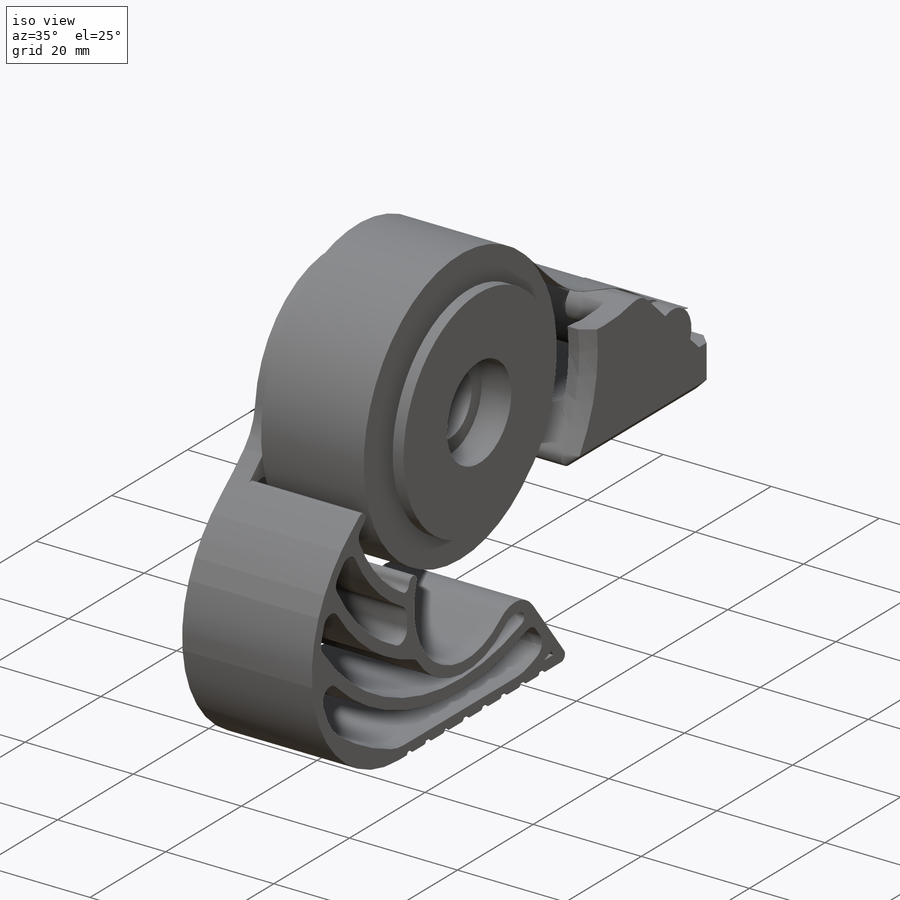
[diagram: iso view]
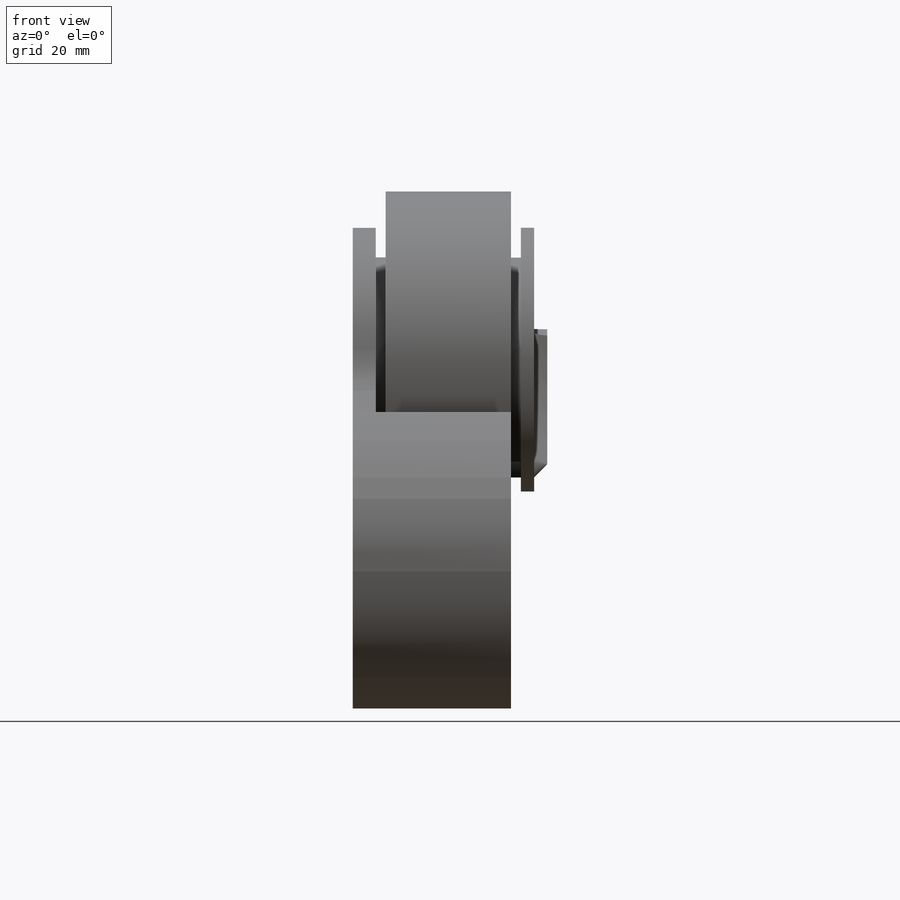
[diagram: front view]
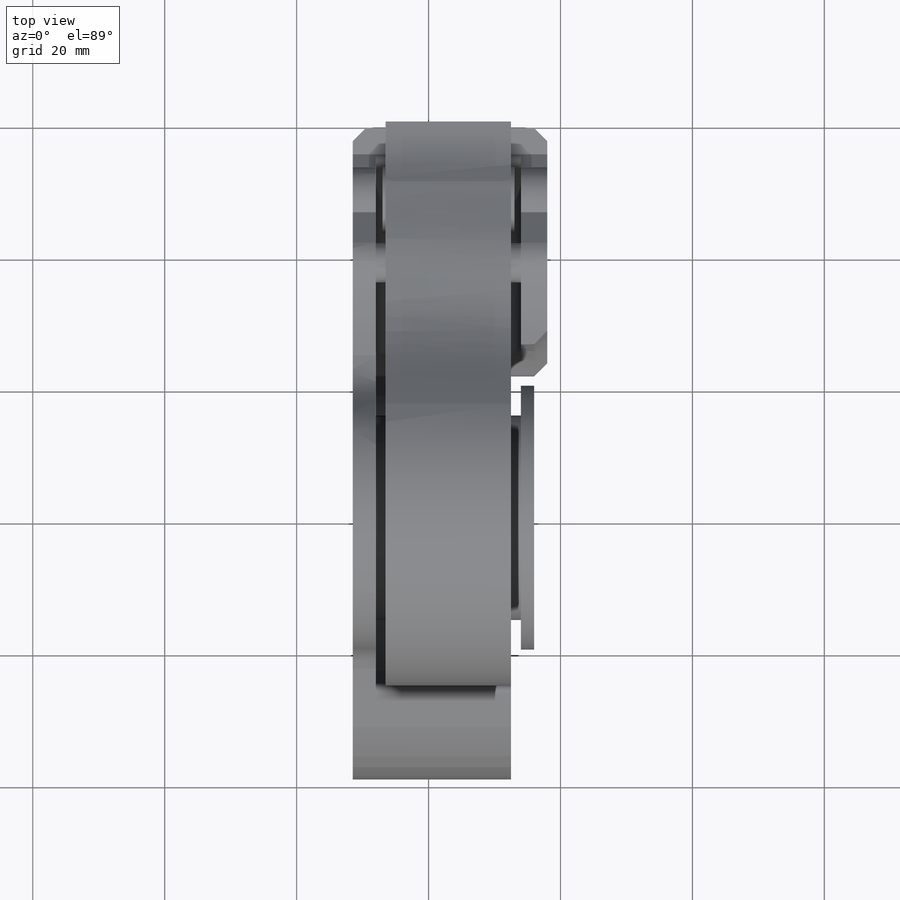
[diagram: top view]
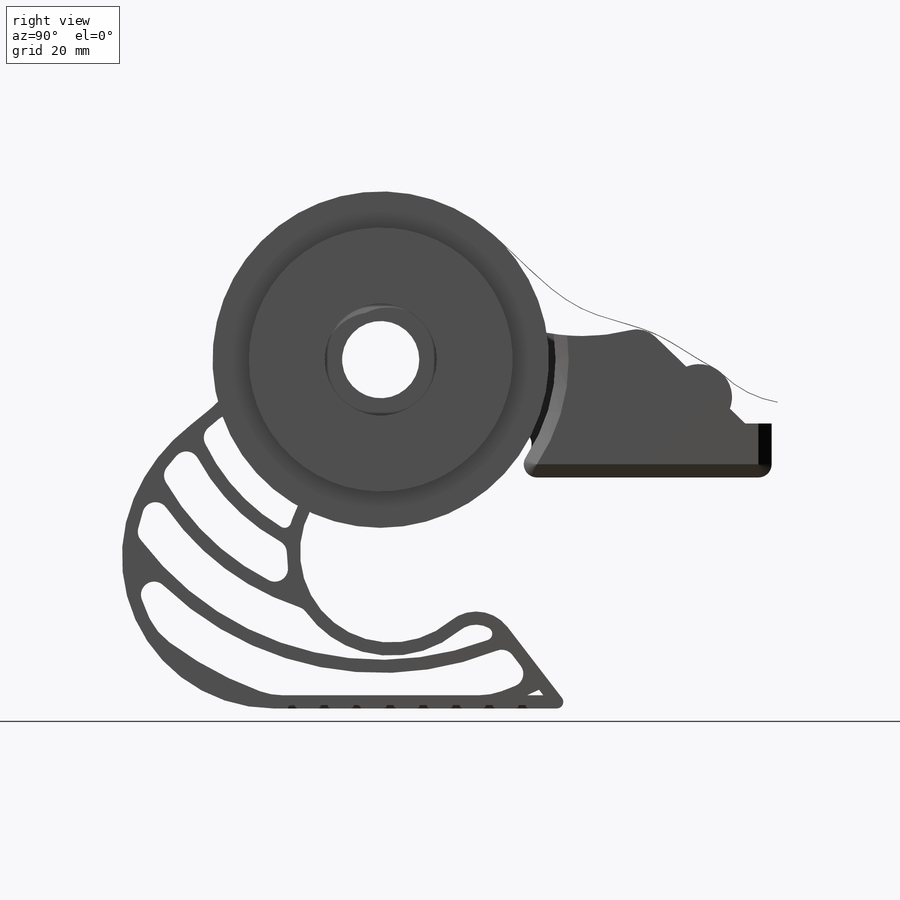
[diagram: right view]
SOLIDWORKS PART (.sldprt)
format: sldprt  version: not decoded by parser v0  size: 1,373,184 bytes
history: native  units: mm
features: sketch x34, extrude x21, fillet x12, cut_extrude x7, plane x6, sweep x3, material x1, chamfer x1, helix x1 (+8 scaffold rows collapsed)
feature tree (94):
  scaffold x8  (default folders/planes/origin — collapsed)
  material  "材質 <未指定>"
  plane  "前基準面"
  plane  "上基準面"
  plane  "右基準面"
  sketch  "草圖1"  dims[D1=24.0mm D3=1.5mm D2=3.0mm]
  extrude  "填料-伸長1"  Depth=19mm
  sketch  "草圖2"  dims[D1=31.0mm]
  extrude  "填料-伸長2"  Depth=1.5mm
  sketch  "草圖3"  dims[D1=0.0mm]
  cut_extrude  "除料-伸長1"  Depth=0.5mm
  sketch  "草圖4"  dims[D1=0.5mm]
  extrude  "填料-伸長3"  Depth=1.5mm
  sketch  "草圖5"  dims[D1=3.0mm]
  extrude  "填料-伸長4"  Depth=10mm
  sketch  "草圖6"  dims[c1.D1=1.0mm c1.D6=1.5mm c1.D4=4.0mm c1.D5=10.0mm c2.D6=6.0mm c2.D3=4.0mm c2.D11=4.0mm c2.D12=1.0mm c2.D13=53.0mm c2.D2=3.5mm c3.D3=10.0mm c3.D4=15.0mm c3.D5=18.0mm c3.D7=~2.158085mm c4.D7=110.0deg c4.D6=3.0mm c4.D8=4.0mm c4.D1=4.0mm c5.D7=5.0mm c5.D9=4.0mm c5.D10=3.0mm c5.D3=25.0mm c5.D11=0.6mm c6.D3=3.0mm]
  sketch  "草圖7"
  sketch  "草圖8"  dims[D1=10.0mm]
  extrude  "填料-伸長5"  [1 undecoded]
  extrude  "填料-伸長6"  Depth=7mm
  sketch  "草圖10"  dims[D1=0.0mm D2=1.5mm]
  extrude  "填料-伸長10"  Depth=22mm
  sketch  "草圖11"  dims[c1.D1=10.0mm c1.D9=51.0mm c1.D10=23.5mm c1.D6=21.5mm c1.D5=39.5mm c1.D3=51.0mm c2.D5=6.0mm c2.D1=50.0mm c2.D2=30.0mm c2.D3=6.0mm c3.D2=30.0mm c3.D9=~43.956342mm c4.D2=8.0mm c4.D3=19.0mm c4.D1=19.0mm c5.D2=10.0mm c5.D4=2.0mm c5.D5=6.0mm c5.D6=2.0mm c5.D7=6.0mm c5.D8=2.0mm c6.D7=6.0mm c6.D8=2.0mm c6.D9=6.0mm c6.D10=2.0mm c6.D11=6.0mm c6.D6=6.0mm c7.D7=2.0mm c7.D8=6.0mm c7.D9=2.0mm c7.D10=6.0mm c7.D11=2.0mm c7.D12=6.0mm c7.D13=2.0mm c7.D14=6.0mm c7.D15=2.0mm c7.D16=2.0mm c7.D17=2.0mm]
  extrude  "填料-伸長14"  Depth=22mm
  sketch  "草圖12"  dims[D1=53.0mm]
  cut_extrude  "除料-伸長2"  Depth=19mm
  sketch  "草圖14"  dims[D1=51.0mm D2=8.7mm]
  extrude  "填料-伸長16"  Depth=19mm
  fillet  "圓角2"  Radius=1mm
  fillet  "圓角3"  Radius=2mm
  fillet  "圓角4"  Radius=1mm
  fillet  "圓角5"  Radius=10mm
  fillet  "圓角6"  Radius=1mm
  sketch  "草圖16"  dims[D1=0.0mm]
  extrude  "填料-伸長17"  Depth=2mm
  extrude  "填料-伸長18"  Depth=20mm
  sketch  "草圖18"  dims[D3=2.0mm D2=6.0mm D1=0.0mm]
  extrude  "填料-伸長19"  [1 undecoded]
  fillet  "圓角7"  Radius=1mm
  sketch  "草圖20"  dims[c1.D1=0.0mm c1.D2=0.0mm c1.D3=0.0mm c2.D1=1.0mm]
  extrude  "填料-伸長20"  Depth=4mm
  chamfer  "導角1"  Distance=2mm Angle=45deg
  fillet  "圓角9"  Radius=2mm
  fillet  "圓角10"  Radius=2mm
  sketch  "草圖21"  dims[D1=0.0mm]
  extrude  "填料-伸長21"  Depth=7mm
  sketch  "草圖23"
  cut_extrude  "除料-伸長3"  [1 undecoded]
  sketch  "草圖25"  dims[D1=24.0mm]
  extrude  "填料-伸長22"  Depth=1.5mm
  sketch  "草圖26"  dims[D1=0.5mm]
  extrude  "填料-伸長24"  Depth=3.5mm
  sketch  "草圖27"  dims[D1=40.0mm D2=19.0mm]
  extrude  "填料-伸長25"  Depth=2mm
  sketch  "草圖28"  dims[D1=40.0mm]
  extrude  "填料-伸長26"  [1 undecoded]
  fillet  "圓角11"  Radius=10mm
  fillet  "圓角12"  Radius=6mm
  sketch  "草圖29"  dims[c1.D1=~4.04753mm c1.D2=5.0mm c2.D1=0.5mm c2.D2=0.5mm c3.D1=0.0mm]
  cut_extrude  "除料-伸長6"  Depth=0.5mm
  fillet  "圓角13"  Radius=0.5mm
  fillet  "圓角14"  Radius=2mm
  sketch  "草圖30"  dims[D1=10.0mm]
  extrude  "填料-伸長27"  [1 undecoded]
  sketch  "草圖31"  dims[D1=0.0mm]
  extrude  "填料-伸長28"  [1 undecoded]
  sketch  "草圖33"  dims[D1=7.3mm]
  cut_extrude  "除料-伸長7"  Depth=2.5mm
  sketch  "草圖34"  dims[D1=4.2mm]
  cut_extrude  "除料-伸長8"  [1 undecoded]
  sketch  "草圖35"  dims[D1=3.8mm]
  cut_extrude  "除料-伸長9"  Depth=3mm
  sketch  "草圖36"  dims[D1=0.0mm]
  helix  "螺旋曲線/渦捲線1"  Pitch=10mm
  plane  "平面1"
  sketch  "草圖37"  dims[D1=2.4mm D2=1.6mm D3=3.66mm]
  sweep  "除料-掃出1"
  sketch  "草圖38"  dims[D1=17.7mm D2=3.0mm]
  extrude  "填料-伸長29"  Depth=8mm
  sketch  "草圖39"  dims[螺旋曲線/渦捲線2=0.0 D3=8.0mm D4=2.5mm D5=3200.0mm D7=0.0deg]
  plane  "平面2"
  sketch  "草圖40"  dims[D1=2.45mm D2=3.66mm D3=1.4mm]
  sweep  "除料-掃出2"
  sketch  "草圖41"
  plane  "平面3"
  sketch  "草圖42"  dims[D1=0.1mm]
  sweep  "掃出1"
decode coverage: 66 of 79 modeling features carry decoded parameters
note: ~ marks probable driven/reference dimensions
note: 7 parameter values undecoded
summary: no parameter record found for 7 features
note: suppression state not decoded; provenance and decode notes live in map.json
